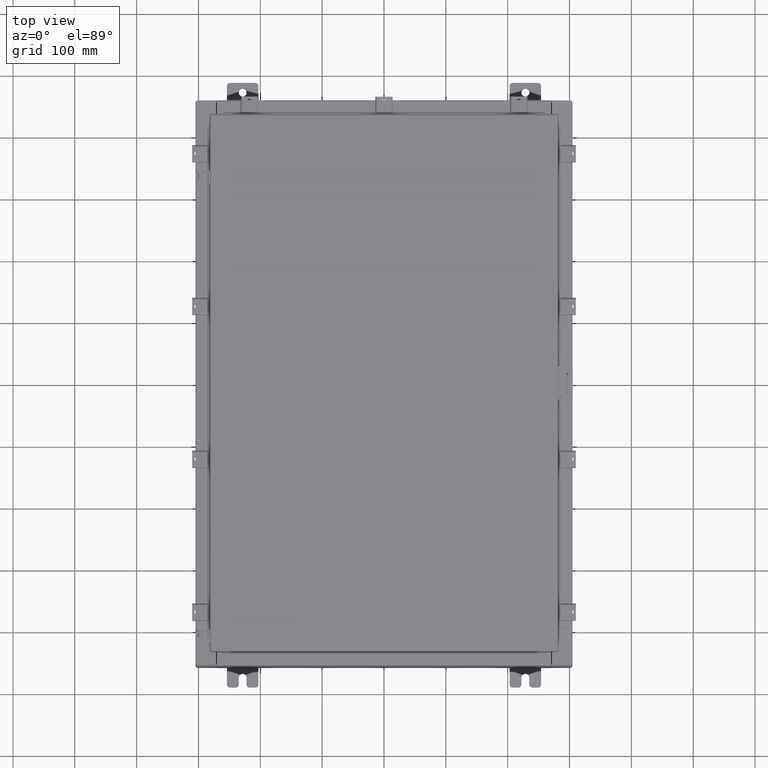
[diagram: clean part render]
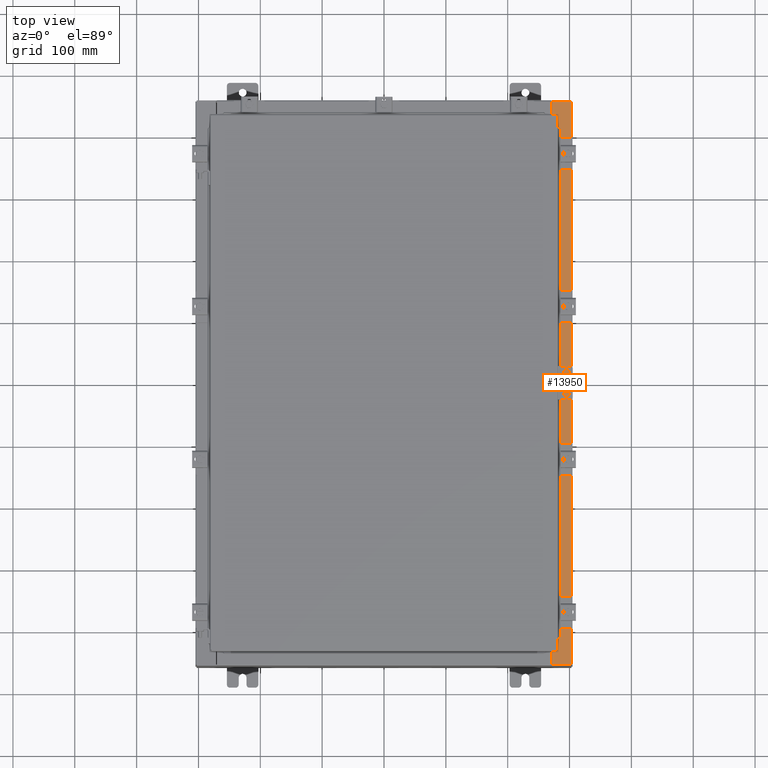
[diagram: same view with one face highlighted and labeled with its STEP entity id]
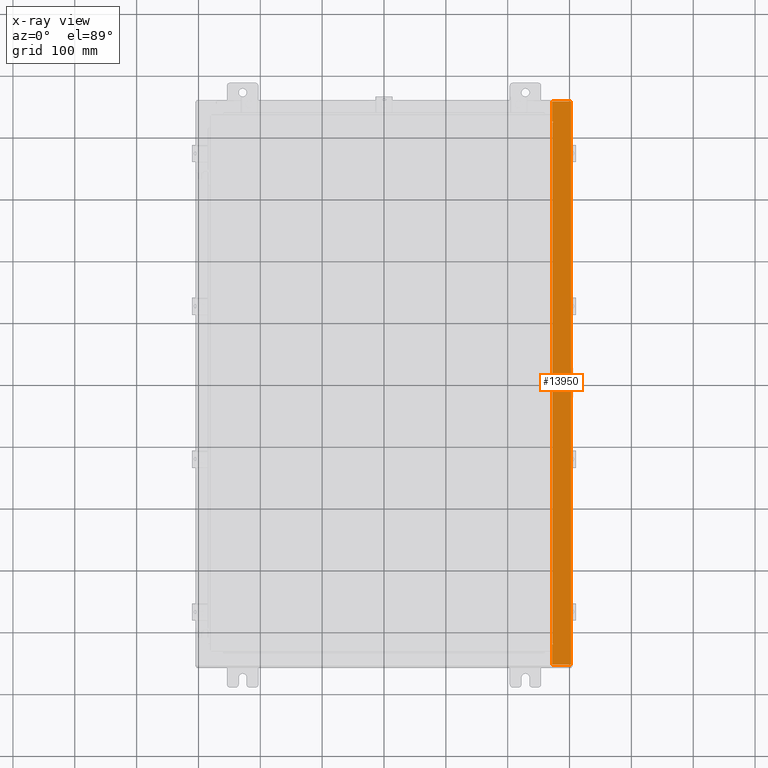
[diagram: x-ray of the same camera — body ghosted, the highlighted face saturated]
A machine part, top view. The second image highlights one B-rep face of the part: STEP entity #13950.
The next image is the same camera in x-ray: the body ghosted, the highlighted face saturated — about 0% of this face is hidden behind the body in this view.
In plain terms, the highlighted planar face has unit normal (-0, 0, -1).
Its self-contained STEP definition (entity closure, byte-faithful):
#28 = EDGE_CURVE ( 'NONE', #21156, #2059, #7996, .T. ) ;
#259 = LINE ( 'NONE', #20322, #9839 ) ;
#501 = DIRECTION ( 'NONE',  ( -1.000000000000000000, 4.340572780400098900E-014, -4.340572780400098900E-014 ) ) ;
#559 = CARTESIAN_POINT ( 'NONE',  ( 10.69970000000003000, -16.63110000000000400, 7.925300000000008900 ) ) ;
#1086 = EDGE_CURVE ( 'NONE', #9700, #4037, #7948, .T. ) ;
#1142 = DIRECTION ( 'NONE',  ( -0.0000000000000000000, -1.000000000000000000, -0.0000000000000000000 ) ) ;
#1646 = CARTESIAN_POINT ( 'NONE',  ( 10.75005000000003000, 16.61242500000000200, 7.925300000000010700 ) ) ;
#1763 = CARTESIAN_POINT ( 'NONE',  ( 10.69970000000003000, 17.92530000000000000, 7.925300000000007100 ) ) ;
#1938 = CARTESIAN_POINT ( 'NONE',  ( 10.69970000000003000, -2.307817491507028800E-030, 7.925300000000007100 ) ) ;
#2059 = VERTEX_POINT ( 'NONE', #11224 ) ;
#2098 = FACE_OUTER_BOUND ( 'NONE', #17484, .T. ) ;
#2721 = CARTESIAN_POINT ( 'NONE',  ( 10.69970000000003000, -2.307817491507028800E-030, 7.925300000000007100 ) ) ;
#2879 = DIRECTION ( 'NONE',  ( 1.000000000000000000, -1.783190596386596200E-015, -6.241167087353087800E-015 ) ) ;
#3451 = DIRECTION ( 'NONE',  ( 1.000000000000000000, 0.0000000000000000000, 0.0000000000000000000 ) ) ;
#3500 = AXIS2_PLACEMENT_3D ( 'NONE', #16685, #9547, #22098 ) ;
#3662 = DIRECTION ( 'NONE',  ( -2.156899250920150100E-031, -1.000000000000000000, 1.346156861557936900E-045 ) ) ;
#3691 = EDGE_CURVE ( 'NONE', #10904, #13259, #259, .T. ) ;
#3699 = VERTEX_POINT ( 'NONE', #1763 ) ;
#4037 = VERTEX_POINT ( 'NONE', #5920 ) ;
#4115 = PLANE ( 'NONE',  #3500 ) ;
#4252 = LINE ( 'NONE', #1938, #13249 ) ;
#4526 = DIRECTION ( 'NONE',  ( 6.241167087353086200E-015, 0.0000000000000000000, 1.000000000000000000 ) ) ;
#4687 = CARTESIAN_POINT ( 'NONE',  ( 11.91230000000002900, -17.92530000000000000, 7.925300000000000000 ) ) ;
#4773 = CARTESIAN_POINT ( 'NONE',  ( 10.75005000000003000, -16.63110000000000000, 7.925300000000007100 ) ) ;
#4958 = ORIENTED_EDGE ( 'NONE', *, *, #1086, .F. ) ;
#5130 = ORIENTED_EDGE ( 'NONE', *, *, #13454, .T. ) ;
#5329 = VERTEX_POINT ( 'NONE', #14066 ) ;
#5776 = LINE ( 'NONE', #13637, #17024 ) ;
#5920 = CARTESIAN_POINT ( 'NONE',  ( 11.91230000000002900, -17.92530000000000000, 7.925300000000000000 ) ) ;
#6043 = ORIENTED_EDGE ( 'NONE', *, *, #6524, .F. ) ;
#6421 = AXIS2_PLACEMENT_3D ( 'NONE', #7512, #4526, #21473 ) ;
#6455 = VECTOR ( 'NONE', #22706, 39.37007874015748100 ) ;
#6524 = EDGE_CURVE ( 'NONE', #5329, #9931, #7029, .T. ) ;
#6555 = EDGE_CURVE ( 'NONE', #2059, #18789, #11786, .T. ) ;
#6642 = CARTESIAN_POINT ( 'NONE',  ( 10.75005000000003000, -16.59375000000000000, 7.925300000000010700 ) ) ;
#6747 = VECTOR ( 'NONE', #12080, 39.37007874015748100 ) ;
#7029 = LINE ( 'NONE', #20900, #7582 ) ;
#7104 = CARTESIAN_POINT ( 'NONE',  ( 10.69970000000003000, -16.63110000000000400, 7.925300000000007100 ) ) ;
#7345 = EDGE_CURVE ( 'NONE', #9931, #10904, #12034, .T. ) ;
#7512 = CARTESIAN_POINT ( 'NONE',  ( 10.75005000000003000, -16.61242500000000200, 7.925300000000010700 ) ) ;
#7582 = VECTOR ( 'NONE', #10157, 39.37007874015748100 ) ;
#7948 = LINE ( 'NONE', #4687, #21700 ) ;
#7996 = CIRCLE ( 'NONE', #6421, 0.01867499999999949400 ) ;
#8990 = EDGE_CURVE ( 'NONE', #14873, #21156, #17312, .T. ) ;
#9301 = CARTESIAN_POINT ( 'NONE',  ( 10.69970000000003000, -17.92530000000000000, 7.925300000000007100 ) ) ;
#9547 = DIRECTION ( 'NONE',  ( -6.241167087353086200E-015, 0.0000000000000000000, -1.000000000000000000 ) ) ;
#9679 = AXIS2_PLACEMENT_3D ( 'NONE', #1646, #14212, #3451 ) ;
#9700 = VERTEX_POINT ( 'NONE', #22287 ) ;
#9839 = VECTOR ( 'NONE', #501, 39.37007874015748100 ) ;
#9931 = VERTEX_POINT ( 'NONE', #19394 ) ;
#10025 = ORIENTED_EDGE ( 'NONE', *, *, #28, .F. ) ;
#10157 = DIRECTION ( 'NONE',  ( 1.000000000000000000, 0.0000000000000000000, 0.0000000000000000000 ) ) ;
#10609 = ORIENTED_EDGE ( 'NONE', *, *, #18414, .T. ) ;
#10864 = VERTEX_POINT ( 'NONE', #9301 ) ;
#10904 = VERTEX_POINT ( 'NONE', #16590 ) ;
#11224 = CARTESIAN_POINT ( 'NONE',  ( 10.75005000000003000, -16.59375000000000000, 7.925300000000007100 ) ) ;
#11776 = DIRECTION ( 'NONE',  ( -1.000000000000000000, 0.0000000000000000000, 6.241167087353087800E-015 ) ) ;
#11786 = LINE ( 'NONE', #6642, #6455 ) ;
#12034 = CIRCLE ( 'NONE', #9679, 0.01867499999999949400 ) ;
#12080 = DIRECTION ( 'NONE',  ( -0.0000000000000000000, 1.000000000000000000, -0.0000000000000000000 ) ) ;
#12160 = ORIENTED_EDGE ( 'NONE', *, *, #18549, .F. ) ;
#12215 = ORIENTED_EDGE ( 'NONE', *, *, #3691, .F. ) ;
#12523 = VECTOR ( 'NONE', #16830, 39.37007874015748100 ) ;
#13168 = LINE ( 'NONE', #2721, #17399 ) ;
#13249 = VECTOR ( 'NONE', #3662, 39.37007874015748100 ) ;
#13259 = VERTEX_POINT ( 'NONE', #18524 ) ;
#13454 = EDGE_CURVE ( 'NONE', #10864, #4037, #5776, .T. ) ;
#13466 = DIRECTION ( 'NONE',  ( -2.156899250920150100E-031, -1.000000000000000000, 1.346156861557936900E-045 ) ) ;
#13637 = CARTESIAN_POINT ( 'NONE',  ( 1.775970877600283600E-014, -17.92529999999998200, 7.925300000000073700 ) ) ;
#13950 = ADVANCED_FACE ( 'NONE', ( #2098 ), #4115, .F. ) ;
#14066 = CARTESIAN_POINT ( 'NONE',  ( 10.71270000000003000, 16.59375000000000000, 7.925300000000010700 ) ) ;
#14212 = DIRECTION ( 'NONE',  ( 6.241167087353086200E-015, 0.0000000000000000000, 1.000000000000000000 ) ) ;
#14873 = VERTEX_POINT ( 'NONE', #7104 ) ;
#15099 = ORIENTED_EDGE ( 'NONE', *, *, #6555, .F. ) ;
#16040 = ORIENTED_EDGE ( 'NONE', *, *, #8990, .F. ) ;
#16042 = EDGE_CURVE ( 'NONE', #14873, #10864, #4252, .T. ) ;
#16279 = LINE ( 'NONE', #19230, #6747 ) ;
#16590 = CARTESIAN_POINT ( 'NONE',  ( 10.75005000000003000, 16.63110000000000000, 7.925300000000007100 ) ) ;
#16685 = CARTESIAN_POINT ( 'NONE',  ( 4.972393517341145600E-014, 0.0000000000000000000, 7.925300000000073700 ) ) ;
#16830 = DIRECTION ( 'NONE',  ( 1.000000000000000000, 4.340572780400098900E-014, 4.340572780400098900E-014 ) ) ;
#17024 = VECTOR ( 'NONE', #2879, 39.37007874015748100 ) ;
#17312 = LINE ( 'NONE', #559, #12523 ) ;
#17399 = VECTOR ( 'NONE', #13466, 39.37007874015748100 ) ;
#17418 = VECTOR ( 'NONE', #11776, 39.37007874015748100 ) ;
#17484 = EDGE_LOOP ( 'NONE', ( #16040, #19897, #5130, #4958, #10609, #20842, #12215, #20294, #6043, #12160, #15099, #10025 ) ) ;
#18414 = EDGE_CURVE ( 'NONE', #9700, #3699, #22732, .T. ) ;
#18524 = CARTESIAN_POINT ( 'NONE',  ( 10.69970000000003000, 16.63110000000000000, 7.925300000000007100 ) ) ;
#18549 = EDGE_CURVE ( 'NONE', #18789, #5329, #16279, .T. ) ;
#18789 = VERTEX_POINT ( 'NONE', #20155 ) ;
#18990 = EDGE_CURVE ( 'NONE', #3699, #13259, #13168, .T. ) ;
#19230 = CARTESIAN_POINT ( 'NONE',  ( 10.71270000000003000, -16.59375000000000000, 7.925300000000010700 ) ) ;
#19394 = CARTESIAN_POINT ( 'NONE',  ( 10.75005000000003000, 16.59375000000000000, 7.925300000000007100 ) ) ;
#19897 = ORIENTED_EDGE ( 'NONE', *, *, #16042, .T. ) ;
#20155 = CARTESIAN_POINT ( 'NONE',  ( 10.71270000000003000, -16.59375000000000000, 7.925300000000010700 ) ) ;
#20294 = ORIENTED_EDGE ( 'NONE', *, *, #7345, .F. ) ;
#20322 = CARTESIAN_POINT ( 'NONE',  ( 10.75005000000003000, 16.63110000000000000, 7.925300000000010700 ) ) ;
#20842 = ORIENTED_EDGE ( 'NONE', *, *, #18990, .T. ) ;
#20900 = CARTESIAN_POINT ( 'NONE',  ( 10.71270000000003000, 16.59375000000000000, 7.925300000000010700 ) ) ;
#21156 = VERTEX_POINT ( 'NONE', #4773 ) ;
#21473 = DIRECTION ( 'NONE',  ( 1.000000000000000000, 0.0000000000000000000, 0.0000000000000000000 ) ) ;
#21700 = VECTOR ( 'NONE', #1142, 39.37007874015748100 ) ;
#22098 = DIRECTION ( 'NONE',  ( -1.000000000000000000, 0.0000000000000000000, 6.241167087353086200E-015 ) ) ;
#22287 = CARTESIAN_POINT ( 'NONE',  ( 11.91230000000002900, 17.92530000000000000, 7.925300000000000000 ) ) ;
#22513 = CARTESIAN_POINT ( 'NONE',  ( 4.972393517341145600E-014, 17.92529999999999600, 7.925300000000073700 ) ) ;
#22706 = DIRECTION ( 'NONE',  ( -1.000000000000000000, 0.0000000000000000000, 0.0000000000000000000 ) ) ;
#22732 = LINE ( 'NONE', #22513, #17418 ) ;